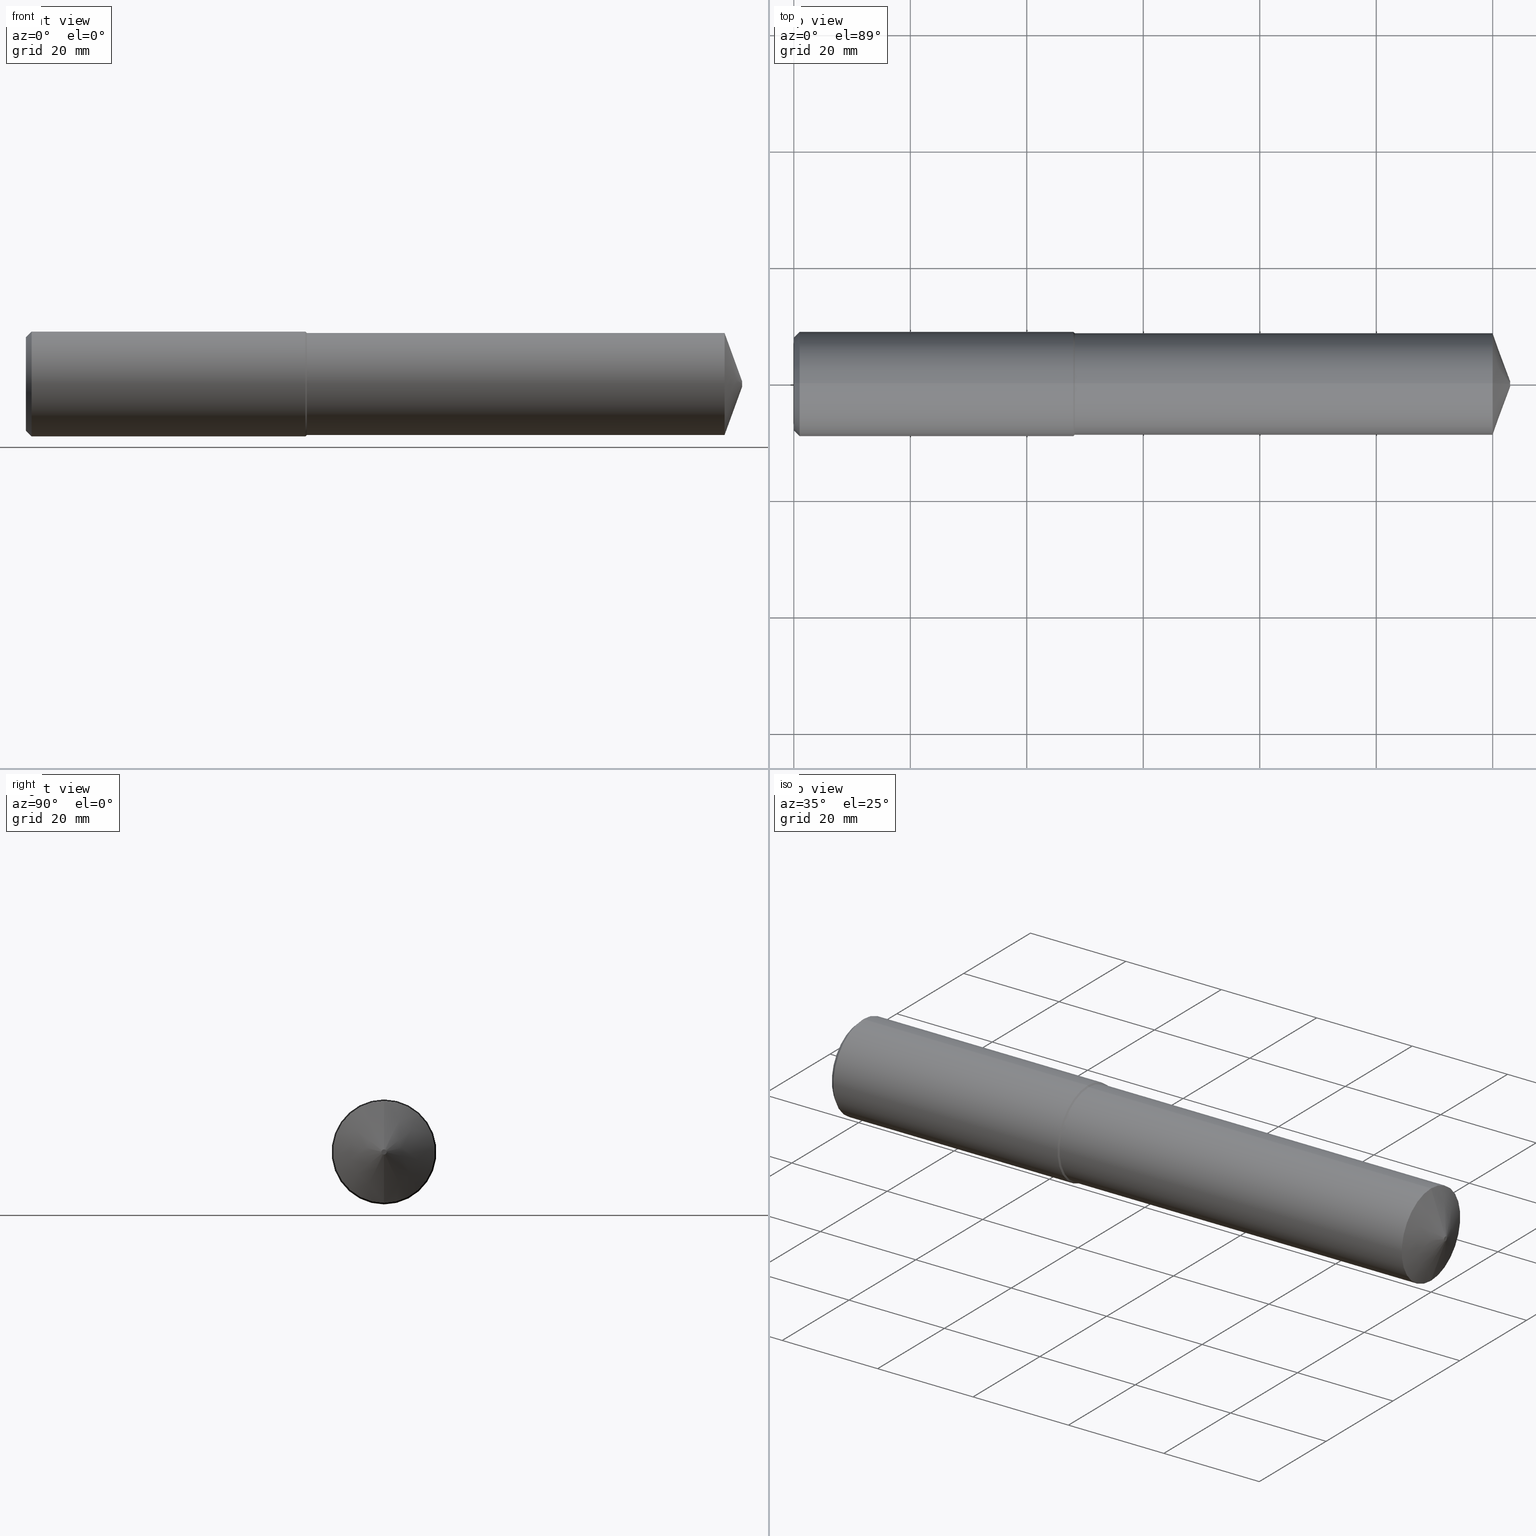
[diagram: canonical four-view strip — front | top / right | iso, engineering-drawing reading convention]
A machine part, canonical four-view strip (front | top / right | iso — engineering-drawing reading convention). The complete STEP part file that produces these views, byte-faithful:
ISO-10303-21;
HEADER;
FILE_DESCRIPTION (( 'STEP AP203' ),
    '1' );
FILE_NAME ('407010-DFX3-689A.STEP',
    '2024-10-02T21:55:35',
    ( '' ),
    ( '' ),
    'SwSTEP 2.0',
    'SolidWorks 2024',
    '' );
FILE_SCHEMA (( 'CONFIG_CONTROL_DESIGN' ));
ENDSEC;

DATA;
#1 = CARTESIAN_POINT ( 'NONE',  ( 1.889763779527559251, 0.000000000000000000, 0.000000000000000000 ) ) ;
#2 = CARTESIAN_POINT ( 'NONE',  ( 1.889763779527559251, 4.339299682018183145E-17, -0.3543307086614175261 ) ) ;
#3 =( CONVERSION_BASED_UNIT ( 'INCH', #351 ) LENGTH_UNIT ( ) NAMED_UNIT ( #136 ) );
#4 = LOCAL_TIME ( 14, 55, 35.00000000000000000, #181 ) ;
#5 = DIRECTION ( 'NONE',  ( 0.000000000000000000, 0.000000000000000000, -1.000000000000000000 ) ) ;
#6 = EDGE_CURVE ( 'NONE', #296, #210, #217, .T. ) ;
#7 = LINE ( 'NONE', #294, #328 ) ;
#8 = ORIENTED_EDGE ( 'NONE', *, *, #173, .T. ) ;
#9 =( LENGTH_UNIT ( ) NAMED_UNIT ( * ) SI_UNIT ( $, .METRE. ) );
#10 = CC_DESIGN_PERSON_AND_ORGANIZATION_ASSIGNMENT ( #149, #365, ( #187 ) ) ;
#11 = CALENDAR_DATE ( 2024, 2, 10 ) ;
#12 = LINE ( 'NONE', #121, #78 ) ;
#13 = AXIS2_PLACEMENT_3D ( 'NONE', #28, #176, #197 ) ;
#14 = DIRECTION ( 'NONE',  ( 1.000000000000000000, -0.000000000000000000, -0.000000000000000000 ) ) ;
#15 = APPROVAL_DATE_TIME ( #308, #199 ) ;
#16 = ADVANCED_FACE ( 'NONE', ( #180 ), #147, .T. ) ;
#17 = EDGE_LOOP ( 'NONE', ( #248, #75, #277, #185 ) ) ;
#18 = PERSON_AND_ORGANIZATION ( #194, #160 ) ;
#19 = FACE_OUTER_BOUND ( 'NONE', #327, .T. ) ;
#20 =( GEOMETRIC_REPRESENTATION_CONTEXT ( 3 ) GLOBAL_UNCERTAINTY_ASSIGNED_CONTEXT ( ( #331 ) ) GLOBAL_UNIT_ASSIGNED_CONTEXT ( ( #3, #86, #142 ) ) REPRESENTATION_CONTEXT ( 'NONE', 'WORKASPACE' ) );
#21 = DIRECTION ( 'NONE',  ( 0.7071067811865473507, 8.659560562354935323E-17, 0.7071067811865476838 ) ) ;
#22 = ADVANCED_FACE ( 'NONE', ( #182 ), #359, .T. ) ;
#23 = FACE_OUTER_BOUND ( 'NONE', #245, .T. ) ;
#24 = DIRECTION ( 'NONE',  ( -0.7071067811865549002, 0.000000000000000000, 0.7071067811865401342 ) ) ;
#25 = CARTESIAN_POINT ( 'NONE',  ( -0.03808593750000075634, 4.218908223062636632E-17, 0.3445000000000003615 ) ) ;
#26 = CC_DESIGN_APPROVAL ( #80, ( #233 ) ) ;
#27 = CARTESIAN_POINT ( 'NONE',  ( 4.723501418434322474, 4.218908223062640330E-17, -0.3445000000000006390 ) ) ;
#28 = CARTESIAN_POINT ( 'NONE',  ( -0.03808593750000075634, 0.000000000000000000, 0.000000000000000000 ) ) ;
#29 = DIRECTION ( 'NONE',  ( 0.7071067811865473507, 0.000000000000000000, -0.7071067811865476838 ) ) ;
#30 = CONICAL_SURFACE ( 'NONE', #260, 0.01750000000000059841, 1.221730476396031717 ) ;
#31 = ORIENTED_EDGE ( 'NONE', *, *, #6, .F. ) ;
#32 = CC_DESIGN_APPROVAL ( #259, ( #292 ) ) ;
#33 = DIRECTION ( 'NONE',  ( 1.000000000000000000, -0.000000000000000000, -0.000000000000000000 ) ) ;
#34 = CARTESIAN_POINT ( 'NONE',  ( 4.842519685039370358, 0.000000000000000000, 0.000000000000000000 ) ) ;
#35 = LINE ( 'NONE', #205, #107 ) ;
#36 = AXIS2_PLACEMENT_3D ( 'NONE', #190, #51, #192 ) ;
#37 = AXIS2_PLACEMENT_3D ( 'NONE', #1, #135, #111 ) ;
#38 = PLANE ( 'NONE',  #209 ) ;
#39 = SECURITY_CLASSIFICATION_LEVEL ( 'unclassified' ) ;
#40 = APPLICATION_CONTEXT ( 'configuration controlled 3d designs of mechanical parts and assemblies' ) ;
#41 = ORIENTED_EDGE ( 'NONE', *, *, #283, .F. ) ;
#42 = AXIS2_PLACEMENT_3D ( 'NONE', #250, #84, #161 ) ;
#43 = ADVANCED_FACE ( 'NONE', ( #19 ), #279, .T. ) ;
#44 = PERSON_AND_ORGANIZATION ( #194, #160 ) ;
#45 = ORIENTED_EDGE ( 'NONE', *, *, #87, .F. ) ;
#46 = APPROVAL_STATUS ( 'not_yet_approved' ) ;
#47 = DIRECTION ( 'NONE',  ( 0.000000000000000000, 0.000000000000000000, -1.000000000000000000 ) ) ;
#48 = DIRECTION ( 'NONE',  ( 1.000000000000000000, 0.000000000000000000, -0.000000000000000000 ) ) ;
#49 = CONICAL_SURFACE ( 'NONE', #254, 0.3543307086614172485, 0.7853981633974485010 ) ;
#50 = CARTESIAN_POINT ( 'NONE',  ( 4.842519685039370358, 0.000000000000000000, 0.000000000000000000 ) ) ;
#51 = DIRECTION ( 'NONE',  ( 1.000000000000000000, -0.000000000000000000, -0.000000000000000000 ) ) ;
#52 = CARTESIAN_POINT ( 'NONE',  ( -0.03808593750000075634, 0.000000000000000000, 0.000000000000000000 ) ) ;
#53 = AXIS2_PLACEMENT_3D ( 'NONE', #52, #220, #77 ) ;
#54 = PLANE ( 'NONE',  #159 ) ;
#55 = AXIS2_PLACEMENT_3D ( 'NONE', #338, #278, #157 ) ;
#56 = DIRECTION ( 'NONE',  ( 0.000000000000000000, 0.000000000000000000, -1.000000000000000000 ) ) ;
#57 = PRODUCT_RELATED_PRODUCT_CATEGORY ( 'detail', '', ( #187 ) ) ;
#58 = DIRECTION ( 'NONE',  ( 0.000000000000000000, 0.000000000000000000, -1.000000000000000000 ) ) ;
#59 = ADVANCED_FACE ( 'NONE', ( #304 ), #38, .T. ) ;
#60 = VECTOR ( 'NONE', #222, 39.37007874015748143 ) ;
#61 = LINE ( 'NONE', #146, #318 ) ;
#62 = ORIENTED_EDGE ( 'NONE', *, *, #256, .F. ) ;
#63 = DIRECTION ( 'NONE',  ( -0.3420201433256677692, 0.000000000000000000, 0.9396926207859086499 ) ) ;
#64 = ORIENTED_EDGE ( 'NONE', *, *, #325, .T. ) ;
#65 = CC_DESIGN_APPROVAL ( #199, ( #249 ) ) ;
#66 = DIRECTION ( 'NONE',  ( 0.000000000000000000, 0.000000000000000000, -1.000000000000000000 ) ) ;
#67 = PERSON_AND_ORGANIZATION_ROLE ( 'classification_officer' ) ;
#68 = ORIENTED_EDGE ( 'NONE', *, *, #133, .T. ) ;
#69 = EDGE_CURVE ( 'NONE', #116, #266, #191, .T. ) ;
#70 = DATE_AND_TIME ( #11, #4 ) ;
#71 = VERTEX_POINT ( 'NONE', #273 ) ;
#72 = SHAPE_DEFINITION_REPRESENTATION ( #130, #97 ) ;
#73 = EDGE_LOOP ( 'NONE', ( #8, #311, #369, #198 ) ) ;
#74 = EDGE_CURVE ( 'NONE', #367, #116, #12, .T. ) ;
#75 = ORIENTED_EDGE ( 'NONE', *, *, #289, .T. ) ;
#76 = CYLINDRICAL_SURFACE ( 'NONE', #105, 0.3543307086614173596 ) ;
#77 = DIRECTION ( 'NONE',  ( 0.000000000000000000, 0.000000000000000000, -1.000000000000000000 ) ) ;
#78 = VECTOR ( 'NONE', #14, 39.37007874015748143 ) ;
#79 = DIRECTION ( 'NONE',  ( 1.000000000000000000, -0.000000000000000000, -0.000000000000000000 ) ) ;
#80 = APPROVAL ( #46, 'UNSPECIFIED' ) ;
#81 = EDGE_CURVE ( 'NONE', #218, #266, #124, .T. ) ;
#82 = CARTESIAN_POINT ( 'NONE',  ( -0.03808593750000075634, 0.000000000000000000, 0.000000000000000000 ) ) ;
#83 = CIRCLE ( 'NONE', #298, 0.3149606299212597271 ) ;
#84 = DIRECTION ( 'NONE',  ( 1.000000000000000000, -0.000000000000000000, -0.000000000000000000 ) ) ;
#85 = VECTOR ( 'NONE', #24, 39.37007874015748143 ) ;
#86 =( NAMED_UNIT ( * ) PLANE_ANGLE_UNIT ( ) SI_UNIT ( $, .RADIAN. ) );
#87 = EDGE_CURVE ( 'NONE', #352, #362, #285, .T. ) ;
#88 = DIRECTION ( 'NONE',  ( -0.7071067811865549002, 8.659560562354842879E-17, -0.7071067811865401342 ) ) ;
#89 = ORIENTED_EDGE ( 'NONE', *, *, #358, .T. ) ;
#90 = DIRECTION ( 'NONE',  ( 1.000000000000000000, -0.000000000000000000, -0.000000000000000000 ) ) ;
#91 = ORIENTED_EDGE ( 'NONE', *, *, #242, .F. ) ;
#92 = DATE_AND_TIME ( #127, #113 ) ;
#93 = EDGE_CURVE ( 'NONE', #218, #126, #109, .T. ) ;
#94 = VERTEX_POINT ( 'NONE', #2 ) ;
#95 = APPLICATION_PROTOCOL_DEFINITION ( 'international standard', 'config_control_design', 1994, #40 ) ;
#96 = DIRECTION ( 'NONE',  ( -1.000000000000000000, 0.000000000000000000, 0.000000000000000000 ) ) ;
#97 = ADVANCED_BREP_SHAPE_REPRESENTATION ( '407010-DFX3-689A', ( #265, #106 ), #20 ) ;
#98 = ORIENTED_EDGE ( 'NONE', *, *, #110, .F. ) ;
#99 = CIRCLE ( 'NONE', #370, 0.3149606299212597271 ) ;
#100 = APPROVAL_STATUS ( 'not_yet_approved' ) ;
#101 = ORIENTED_EDGE ( 'NONE', *, *, #207, .F. ) ;
#102 = AXIS2_PLACEMENT_3D ( 'NONE', #309, #96, #158 ) ;
#103 = DIRECTION ( 'NONE',  ( 1.000000000000000000, -0.000000000000000000, -0.000000000000000000 ) ) ;
#104 = FACE_OUTER_BOUND ( 'NONE', #73, .T. ) ;
#105 = AXIS2_PLACEMENT_3D ( 'NONE', #82, #347, #257 ) ;
#106 = AXIS2_PLACEMENT_3D ( 'NONE', #227, #353, #264 ) ;
#107 = VECTOR ( 'NONE', #63, 39.37007874015748143 ) ;
#108 = APPROVAL_PERSON_ORGANIZATION ( #368, #80, #246 ) ;
#109 = LINE ( 'NONE', #313, #85 ) ;
#110 = EDGE_CURVE ( 'NONE', #94, #126, #196, .T. ) ;
#111 = DIRECTION ( 'NONE',  ( 0.000000000000000000, 0.000000000000000000, -1.000000000000000000 ) ) ;
#112 = FACE_OUTER_BOUND ( 'NONE', #17, .T. ) ;
#113 = LOCAL_TIME ( 14, 55, 35.00000000000000000, #303 ) ;
#114 = EDGE_LOOP ( 'NONE', ( #213, #243, #336, #322 ) ) ;
#115 = LINE ( 'NONE', #323, #202 ) ;
#116 = VERTEX_POINT ( 'NONE', #27 ) ;
#117 = CARTESIAN_POINT ( 'NONE',  ( 4.723501418434322474, 0.000000000000000000, 0.3445000000000006390 ) ) ;
#118 = ORIENTED_EDGE ( 'NONE', *, *, #363, .F. ) ;
#119 = ADVANCED_FACE ( 'NONE', ( #348 ), #30, .T. ) ;
#120 = CALENDAR_DATE ( 2024, 2, 10 ) ;
#121 = CARTESIAN_POINT ( 'NONE',  ( -0.03808593750000075634, 0.000000000000000000, -0.3445000000000003615 ) ) ;
#122 = LOCAL_TIME ( 14, 55, 35.00000000000000000, #241 ) ;
#123 = PERSON_AND_ORGANIZATION ( #194, #160 ) ;
#124 = LINE ( 'NONE', #25, #345 ) ;
#125 = DATE_TIME_ROLE ( 'classification_date' ) ;
#126 = VERTEX_POINT ( 'NONE', #319 ) ;
#127 = CALENDAR_DATE ( 2024, 2, 10 ) ;
#128 = ORIENTED_EDGE ( 'NONE', *, *, #189, .F. ) ;
#129 = CYLINDRICAL_SURFACE ( 'NONE', #177, 0.3445000000000003615 ) ;
#130 = PRODUCT_DEFINITION_SHAPE ( 'NONE', 'NONE',  #249 ) ;
#131 = DIRECTION ( 'NONE',  ( 0.000000000000000000, 0.000000000000000000, 1.000000000000000000 ) ) ;
#132 = CC_DESIGN_PERSON_AND_ORGANIZATION_ASSIGNMENT ( #18, #154, ( #292 ) ) ;
#133 = EDGE_CURVE ( 'NONE', #210, #94, #317, .T. ) ;
#134 = DIRECTION ( 'NONE',  ( -1.000000000000000000, 0.000000000000000000, 0.000000000000000000 ) ) ;
#135 = DIRECTION ( 'NONE',  ( 1.000000000000000000, -0.000000000000000000, -0.000000000000000000 ) ) ;
#136 = DIMENSIONAL_EXPONENTS ( 1.000000000000000000, 0.000000000000000000, 0.000000000000000000, 0.000000000000000000, 0.000000000000000000, 0.000000000000000000, 0.000000000000000000 ) ;
#137 = CARTESIAN_POINT ( 'NONE',  ( -0.03808593750000075634, 0.000000000000000000, 0.000000000000000000 ) ) ;
#138 = CYLINDRICAL_SURFACE ( 'NONE', #13, 0.3543307086614173596 ) ;
#139 = AXIS2_PLACEMENT_3D ( 'NONE', #34, #355, #324 ) ;
#140 = ORIENTED_EDGE ( 'NONE', *, *, #332, .T. ) ;
#141 = AXIS2_PLACEMENT_3D ( 'NONE', #340, #184, #47 ) ;
#142 =( NAMED_UNIT ( * ) SI_UNIT ( $, .STERADIAN. ) SOLID_ANGLE_UNIT ( ) );
#143 = DIRECTION ( 'NONE',  ( 0.000000000000000000, 0.000000000000000000, -1.000000000000000000 ) ) ;
#144 = ADVANCED_FACE ( 'NONE', ( #112 ), #129, .T. ) ;
#145 = ORIENTED_EDGE ( 'NONE', *, *, #283, .T. ) ;
#146 = CARTESIAN_POINT ( 'NONE',  ( 4.842519685039370358, 2.143131898507941560E-18, -0.01750000000000059841 ) ) ;
#147 = CONICAL_SURFACE ( 'NONE', #141, 0.3543307086614172485, 0.7853981633974485010 ) ;
#148 = ADVANCED_FACE ( 'NONE', ( #255 ), #76, .T. ) ;
#149 = PERSON_AND_ORGANIZATION ( #194, #160 ) ;
#150 = CARTESIAN_POINT ( 'NONE',  ( 4.723501418434322474, 0.000000000000000000, 0.000000000000000000 ) ) ;
#151 = PERSON_AND_ORGANIZATION ( #194, #160 ) ;
#152 = CIRCLE ( 'NONE', #42, 0.3445000000000001950 ) ;
#153 = DIRECTION ( 'NONE',  ( 0.000000000000000000, 0.000000000000000000, -1.000000000000000000 ) ) ;
#154 = PERSON_AND_ORGANIZATION_ROLE ( 'design_supplier' ) ;
#155 = VERTEX_POINT ( 'NONE', #168 ) ;
#156 = MECHANICAL_CONTEXT ( 'NONE', #212, 'mechanical' ) ;
#157 = DIRECTION ( 'NONE',  ( 0.000000000000000000, 0.000000000000000000, 1.000000000000000000 ) ) ;
#158 = DIRECTION ( 'NONE',  ( 0.000000000000000000, 0.000000000000000000, 1.000000000000000000 ) ) ;
#159 = AXIS2_PLACEMENT_3D ( 'NONE', #343, #188, #131 ) ;
#160 = ORGANIZATION ( 'UNSPECIFIED', 'UNSPECIFIED', '' ) ;
#161 = DIRECTION ( 'NONE',  ( 0.000000000000000000, 0.000000000000000000, -1.000000000000000000 ) ) ;
#162 = CC_DESIGN_PERSON_AND_ORGANIZATION_ASSIGNMENT ( #44, #300, ( #292 ) ) ;
#163 = DIRECTION ( 'NONE',  ( 0.000000000000000000, 0.000000000000000000, -1.000000000000000000 ) ) ;
#164 = DIRECTION ( 'NONE',  ( 0.000000000000000000, 0.000000000000000000, -1.000000000000000000 ) ) ;
#165 = CONICAL_SURFACE ( 'NONE', #253, 0.3445000000000001950, 0.7853981633974378429 ) ;
#166 = CIRCLE ( 'NONE', #139, 0.01750000000000059841 ) ;
#167 = CARTESIAN_POINT ( 'NONE',  ( 1.889763779527559251, 0.000000000000000000, 0.000000000000000000 ) ) ;
#168 = CARTESIAN_POINT ( 'NONE',  ( -8.537024980200822558E-18, 4.098227477461613409E-17, 0.3149606299212597271 ) ) ;
#169 = APPLICATION_PROTOCOL_DEFINITION ( 'international standard', 'config_control_design', 1994, #212 ) ;
#170 = EDGE_LOOP ( 'NONE', ( #275, #291, #91, #360 ) ) ;
#171 = CARTESIAN_POINT ( 'NONE',  ( 4.842519685039370358, 2.216610706456716106E-17, -0.01750000000000059841 ) ) ;
#172 = CC_DESIGN_PERSON_AND_ORGANIZATION_ASSIGNMENT ( #151, #67, ( #233 ) ) ;
#173 = EDGE_CURVE ( 'NONE', #367, #218, #152, .T. ) ;
#174 = CARTESIAN_POINT ( 'NONE',  ( 1.899594488188976582, 0.000000000000000000, 0.000000000000000000 ) ) ;
#175 = ORIENTED_EDGE ( 'NONE', *, *, #69, .T. ) ;
#176 = DIRECTION ( 'NONE',  ( 1.000000000000000000, -0.000000000000000000, -0.000000000000000000 ) ) ;
#177 = AXIS2_PLACEMENT_3D ( 'NONE', #137, #312, #56 ) ;
#178 = CALENDAR_DATE ( 2024, 2, 10 ) ;
#179 = EDGE_LOOP ( 'NONE', ( #128, #145, #239, #31 ) ) ;
#180 = FACE_OUTER_BOUND ( 'NONE', #179, .T. ) ;
#181 = COORDINATED_UNIVERSAL_TIME_OFFSET ( 8, 0, .BEHIND. ) ;
#182 = FACE_OUTER_BOUND ( 'NONE', #310, .T. ) ;
#183 = PERSON_AND_ORGANIZATION ( #194, #160 ) ;
#184 = DIRECTION ( 'NONE',  ( 1.000000000000000000, -0.000000000000000000, -0.000000000000000000 ) ) ;
#185 = ORIENTED_EDGE ( 'NONE', *, *, #376, .F. ) ;
#186 = ORIENTED_EDGE ( 'NONE', *, *, #261, .T. ) ;
#187 = PRODUCT ( '407010-DFX3-689A', '407010-DFX3-689A', '', ( #156 ) ) ;
#188 = DIRECTION ( 'NONE',  ( -1.000000000000000000, 0.000000000000000000, 0.000000000000000000 ) ) ;
#189 = EDGE_CURVE ( 'NONE', #155, #296, #193, .T. ) ;
#190 = CARTESIAN_POINT ( 'NONE',  ( 0.03937007874015747977, 0.000000000000000000, 0.000000000000000000 ) ) ;
#191 = CIRCLE ( 'NONE', #240, 0.3445000000000005835 ) ;
#192 = DIRECTION ( 'NONE',  ( 0.000000000000000000, 0.000000000000000000, -1.000000000000000000 ) ) ;
#193 = LINE ( 'NONE', #195, #232 ) ;
#194 = PERSON ( 'UNSPECIFIED', 'UNSPECIFIED', 'UNSPECIFIED', ('UNSPECIFIED'), ('UNSPECIFIED'), ('UNSPECIFIED') ) ;
#195 = CARTESIAN_POINT ( 'NONE',  ( 0.03937007874015747977, 4.339299682018179447E-17, 0.3543307086614172485 ) ) ;
#196 = CIRCLE ( 'NONE', #37, 0.3543307086614175261 ) ;
#197 = DIRECTION ( 'NONE',  ( 0.000000000000000000, 0.000000000000000000, -1.000000000000000000 ) ) ;
#198 = ORIENTED_EDGE ( 'NONE', *, *, #74, .F. ) ;
#199 = APPROVAL ( #330, 'UNSPECIFIED' ) ;
#200 = DIRECTION ( 'NONE',  ( 1.000000000000000000, -0.000000000000000000, -0.000000000000000000 ) ) ;
#201 = ADVANCED_FACE ( 'NONE', ( #284 ), #165, .T. ) ;
#202 = VECTOR ( 'NONE', #293, 39.37007874015748143 ) ;
#203 = FACE_OUTER_BOUND ( 'NONE', #236, .T. ) ;
#204 = ORIENTED_EDGE ( 'NONE', *, *, #110, .T. ) ;
#205 = CARTESIAN_POINT ( 'NONE',  ( 4.842519685039370358, 0.000000000000000000, 0.01750000000000059841 ) ) ;
#206 = ORIENTED_EDGE ( 'NONE', *, *, #332, .F. ) ;
#207 = EDGE_CURVE ( 'NONE', #126, #94, #238, .T. ) ;
#208 = ORIENTED_EDGE ( 'NONE', *, *, #363, .T. ) ;
#209 = AXIS2_PLACEMENT_3D ( 'NONE', #237, #48, #364 ) ;
#210 = VERTEX_POINT ( 'NONE', #219 ) ;
#211 = DATE_TIME_ROLE ( 'creation_date' ) ;
#212 = APPLICATION_CONTEXT ( 'configuration controlled 3d designs of mechanical parts and assemblies' ) ;
#213 = ORIENTED_EDGE ( 'NONE', *, *, #261, .F. ) ;
#214 = ADVANCED_FACE ( 'NONE', ( #23 ), #54, .T. ) ;
#215 = APPROVAL_DATE_TIME ( #276, #259 ) ;
#216 = CARTESIAN_POINT ( 'NONE',  ( 0.03937007874015747977, 0.000000000000000000, 0.000000000000000000 ) ) ;
#217 = CIRCLE ( 'NONE', #334, 0.3543307086614172485 ) ;
#218 = VERTEX_POINT ( 'NONE', #377 ) ;
#219 = CARTESIAN_POINT ( 'NONE',  ( 0.03937007874015747977, 0.000000000000000000, -0.3543307086614172485 ) ) ;
#220 = DIRECTION ( 'NONE',  ( 1.000000000000000000, -0.000000000000000000, -0.000000000000000000 ) ) ;
#221 = DIRECTION ( 'NONE',  ( 0.000000000000000000, 0.000000000000000000, 1.000000000000000000 ) ) ;
#222 = DIRECTION ( 'NONE',  ( 1.000000000000000000, -0.000000000000000000, -0.000000000000000000 ) ) ;
#223 = CARTESIAN_POINT ( 'NONE',  ( 4.842519685039370358, 0.000000000000000000, 0.000000000000000000 ) ) ;
#224 = AXIS2_PLACEMENT_3D ( 'NONE', #174, #200, #58 ) ;
#225 = LOCAL_TIME ( 14, 55, 35.00000000000000000, #271 ) ;
#226 = ORIENTED_EDGE ( 'NONE', *, *, #6, .T. ) ;
#227 = CARTESIAN_POINT ( 'NONE',  ( 0.000000000000000000, 0.000000000000000000, 0.000000000000000000 ) ) ;
#228 = ADVANCED_FACE ( 'NONE', ( #104 ), #344, .T. ) ;
#229 = ORIENTED_EDGE ( 'NONE', *, *, #242, .T. ) ;
#230 = FACE_OUTER_BOUND ( 'NONE', #170, .T. ) ;
#231 = ORIENTED_EDGE ( 'NONE', *, *, #325, .F. ) ;
#232 = VECTOR ( 'NONE', #21, 39.37007874015748143 ) ;
#233 = SECURITY_CLASSIFICATION ( '', '', #39 ) ;
#234 = CARTESIAN_POINT ( 'NONE',  ( 0.03937007874015747977, 0.000000000000000000, 0.000000000000000000 ) ) ;
#235 = DIRECTION ( 'NONE',  ( 0.000000000000000000, 0.000000000000000000, -1.000000000000000000 ) ) ;
#236 = EDGE_LOOP ( 'NONE', ( #229, #208, #98, #373 ) ) ;
#237 = CARTESIAN_POINT ( 'NONE',  ( 4.842519685039370358, 0.000000000000000000, 0.000000000000000000 ) ) ;
#238 = CIRCLE ( 'NONE', #357, 0.3543307086614175261 ) ;
#239 = ORIENTED_EDGE ( 'NONE', *, *, #315, .T. ) ;
#240 = AXIS2_PLACEMENT_3D ( 'NONE', #150, #272, #153 ) ;
#241 = COORDINATED_UNIVERSAL_TIME_OFFSET ( 8, 0, .BEHIND. ) ;
#242 = EDGE_CURVE ( 'NONE', #210, #296, #267, .T. ) ;
#243 = ORIENTED_EDGE ( 'NONE', *, *, #289, .F. ) ;
#244 = DATE_AND_TIME ( #120, #269 ) ;
#245 = EDGE_LOOP ( 'NONE', ( #62, #41 ) ) ;
#246 = APPROVAL_ROLE ( '' ) ;
#247 = VECTOR ( 'NONE', #88, 39.37007874015748143 ) ;
#248 = ORIENTED_EDGE ( 'NONE', *, *, #81, .F. ) ;
#249 = PRODUCT_DEFINITION ( 'UNKNOWN', '', #292, #295 ) ;
#250 = CARTESIAN_POINT ( 'NONE',  ( 1.899594488188976582, 0.000000000000000000, 0.000000000000000000 ) ) ;
#251 = DIRECTION ( 'NONE',  ( 1.000000000000000000, -0.000000000000000000, -0.000000000000000000 ) ) ;
#252 = DIRECTION ( 'NONE',  ( 1.000000000000000000, -0.000000000000000000, -0.000000000000000000 ) ) ;
#253 = AXIS2_PLACEMENT_3D ( 'NONE', #280, #375, #316 ) ;
#254 = AXIS2_PLACEMENT_3D ( 'NONE', #234, #297, #235 ) ;
#255 = FACE_OUTER_BOUND ( 'NONE', #342, .T. ) ;
#256 = EDGE_CURVE ( 'NONE', #71, #155, #99, .T. ) ;
#257 = DIRECTION ( 'NONE',  ( 0.000000000000000000, 0.000000000000000000, -1.000000000000000000 ) ) ;
#258 = CARTESIAN_POINT ( 'NONE',  ( 4.842519685039370358, 0.000000000000000000, 0.01750000000000059841 ) ) ;
#259 = APPROVAL ( #100, 'UNSPECIFIED' ) ;
#260 = AXIS2_PLACEMENT_3D ( 'NONE', #50, #134, #221 ) ;
#261 = EDGE_CURVE ( 'NONE', #367, #94, #346, .T. ) ;
#262 = DIRECTION ( 'NONE',  ( -0.3420201433256677692, 1.150791560227850763E-16, -0.9396926207859086499 ) ) ;
#263 = ORIENTED_EDGE ( 'NONE', *, *, #358, .F. ) ;
#264 = DIRECTION ( 'NONE',  ( 1.000000000000000000, 0.000000000000000000, 0.000000000000000000 ) ) ;
#265 = MANIFOLD_SOLID_BREP ( 'Body', #302 ) ;
#266 = VERTEX_POINT ( 'NONE', #117 ) ;
#267 = CIRCLE ( 'NONE', #36, 0.3543307086614172485 ) ;
#268 = APPROVAL_PERSON_ORGANIZATION ( #123, #199, #306 ) ;
#269 = LOCAL_TIME ( 14, 55, 35.00000000000000000, #274 ) ;
#270 = ORIENTED_EDGE ( 'NONE', *, *, #87, .T. ) ;
#271 = COORDINATED_UNIVERSAL_TIME_OFFSET ( 8, 0, .BEHIND. ) ;
#272 = DIRECTION ( 'NONE',  ( 1.000000000000000000, -0.000000000000000000, -0.000000000000000000 ) ) ;
#273 = CARTESIAN_POINT ( 'NONE',  ( -8.537024980200822558E-18, 0.000000000000000000, -0.3149606299212597271 ) ) ;
#274 = COORDINATED_UNIVERSAL_TIME_OFFSET ( 8, 0, .BEHIND. ) ;
#275 = ORIENTED_EDGE ( 'NONE', *, *, #256, .T. ) ;
#276 = DATE_AND_TIME ( #335, #122 ) ;
#277 = ORIENTED_EDGE ( 'NONE', *, *, #74, .T. ) ;
#278 = DIRECTION ( 'NONE',  ( -1.000000000000000000, 0.000000000000000000, 0.000000000000000000 ) ) ;
#279 = CONICAL_SURFACE ( 'NONE', #102, 0.3445000000000001950, 0.7853981633974378429 ) ;
#280 = CARTESIAN_POINT ( 'NONE',  ( 1.899594488188976582, 0.000000000000000000, 0.000000000000000000 ) ) ;
#281 = CARTESIAN_POINT ( 'NONE',  ( -8.537024980200822558E-18, 0.000000000000000000, 0.000000000000000000 ) ) ;
#282 = CC_DESIGN_PERSON_AND_ORGANIZATION_ASSIGNMENT ( #183, #341, ( #249 ) ) ;
#283 = EDGE_CURVE ( 'NONE', #155, #71, #83, .T. ) ;
#284 = FACE_OUTER_BOUND ( 'NONE', #114, .T. ) ;
#285 = CIRCLE ( 'NONE', #374, 0.01750000000000059841 ) ;
#286 = CARTESIAN_POINT ( 'NONE',  ( -0.03808593750000075634, 0.000000000000000000, -0.3543307086614173596 ) ) ;
#287 = CC_DESIGN_DATE_AND_TIME_ASSIGNMENT ( #244, #125, ( #233 ) ) ;
#288 = CARTESIAN_POINT ( 'NONE',  ( 1.899594488188976582, 0.000000000000000000, -0.3445000000000001950 ) ) ;
#289 = EDGE_CURVE ( 'NONE', #218, #367, #349, .T. ) ;
#290 = CARTESIAN_POINT ( 'NONE',  ( 1.899594488188976582, 4.218908223062634167E-17, -0.3445000000000001950 ) ) ;
#291 = ORIENTED_EDGE ( 'NONE', *, *, #189, .T. ) ;
#292 = PRODUCT_DEFINITION_FORMATION_WITH_SPECIFIED_SOURCE ( 'ANY', '', #187, .NOT_KNOWN. ) ;
#293 = DIRECTION ( 'NONE',  ( 1.000000000000000000, -0.000000000000000000, -0.000000000000000000 ) ) ;
#294 = CARTESIAN_POINT ( 'NONE',  ( 0.03937007874015747977, 0.000000000000000000, -0.3543307086614172485 ) ) ;
#295 = DESIGN_CONTEXT ( 'detailed design', #40, 'design' ) ;
#296 = VERTEX_POINT ( 'NONE', #361 ) ;
#297 = DIRECTION ( 'NONE',  ( 1.000000000000000000, -0.000000000000000000, -0.000000000000000000 ) ) ;
#298 = AXIS2_PLACEMENT_3D ( 'NONE', #321, #33, #5 ) ;
#299 = CIRCLE ( 'NONE', #371, 0.3445000000000005835 ) ;
#300 = PERSON_AND_ORGANIZATION_ROLE ( 'creator' ) ;
#301 = ORIENTED_EDGE ( 'NONE', *, *, #173, .F. ) ;
#302 = CLOSED_SHELL ( 'NONE', ( #305, #320, #43, #228, #119, #214, #59, #22, #144, #201, #148, #16 ) ) ;
#303 = COORDINATED_UNIVERSAL_TIME_OFFSET ( 8, 0, .BEHIND. ) ;
#304 = FACE_OUTER_BOUND ( 'NONE', #356, .T. ) ;
#305 = ADVANCED_FACE ( 'NONE', ( #230 ), #49, .T. ) ;
#306 = APPROVAL_ROLE ( '' ) ;
#307 = ORIENTED_EDGE ( 'NONE', *, *, #93, .F. ) ;
#308 = DATE_AND_TIME ( #178, #225 ) ;
#309 = CARTESIAN_POINT ( 'NONE',  ( 1.899594488188976582, 0.000000000000000000, 0.000000000000000000 ) ) ;
#310 = EDGE_LOOP ( 'NONE', ( #263, #45, #64, #354 ) ) ;
#311 = ORIENTED_EDGE ( 'NONE', *, *, #81, .T. ) ;
#312 = DIRECTION ( 'NONE',  ( 1.000000000000000000, -0.000000000000000000, -0.000000000000000000 ) ) ;
#313 = CARTESIAN_POINT ( 'NONE',  ( 1.899594488188976582, 0.000000000000000000, 0.3445000000000001950 ) ) ;
#314 = CC_DESIGN_DATE_AND_TIME_ASSIGNMENT ( #70, #211, ( #249 ) ) ;
#315 = EDGE_CURVE ( 'NONE', #71, #210, #7, .T. ) ;
#316 = DIRECTION ( 'NONE',  ( 0.000000000000000000, 0.000000000000000000, 1.000000000000000000 ) ) ;
#317 = LINE ( 'NONE', #286, #60 ) ;
#318 = VECTOR ( 'NONE', #262, 39.37007874015748143 ) ;
#319 = CARTESIAN_POINT ( 'NONE',  ( 1.889763779527559251, 0.000000000000000000, 0.3543307086614175261 ) ) ;
#320 = ADVANCED_FACE ( 'NONE', ( #203 ), #138, .T. ) ;
#321 = CARTESIAN_POINT ( 'NONE',  ( -8.537024980200822558E-18, 0.000000000000000000, 0.000000000000000000 ) ) ;
#322 = ORIENTED_EDGE ( 'NONE', *, *, #207, .T. ) ;
#323 = CARTESIAN_POINT ( 'NONE',  ( -0.03808593750000075634, 4.339299682018181296E-17, 0.3543307086614173596 ) ) ;
#324 = DIRECTION ( 'NONE',  ( 0.000000000000000000, 0.000000000000000000, -1.000000000000000000 ) ) ;
#325 = EDGE_CURVE ( 'NONE', #352, #266, #35, .T. ) ;
#326 = CARTESIAN_POINT ( 'NONE',  ( 4.723501418434322474, 0.000000000000000000, 0.000000000000000000 ) ) ;
#327 = EDGE_LOOP ( 'NONE', ( #301, #186, #204, #307 ) ) ;
#328 = VECTOR ( 'NONE', #29, 39.37007874015748143 ) ;
#329 = APPROVAL_PERSON_ORGANIZATION ( #337, #259, #339 ) ;
#330 = APPROVAL_STATUS ( 'not_yet_approved' ) ;
#331 = UNCERTAINTY_MEASURE_WITH_UNIT (LENGTH_MEASURE( 1.000000000000000082E-05 ), #3, 'distance_accuracy_value', 'NONE');
#332 = EDGE_CURVE ( 'NONE', #362, #352, #166, .T. ) ;
#333 = EDGE_LOOP ( 'NONE', ( #206, #89, #175, #231 ) ) ;
#334 = AXIS2_PLACEMENT_3D ( 'NONE', #216, #366, #66 ) ;
#335 = CALENDAR_DATE ( 2024, 2, 10 ) ;
#336 = ORIENTED_EDGE ( 'NONE', *, *, #93, .T. ) ;
#337 = PERSON_AND_ORGANIZATION ( #194, #160 ) ;
#338 = CARTESIAN_POINT ( 'NONE',  ( 4.842519685039370358, 0.000000000000000000, 0.000000000000000000 ) ) ;
#339 = APPROVAL_ROLE ( '' ) ;
#340 = CARTESIAN_POINT ( 'NONE',  ( 0.03937007874015747977, 0.000000000000000000, 0.000000000000000000 ) ) ;
#341 = PERSON_AND_ORGANIZATION_ROLE ( 'creator' ) ;
#342 = EDGE_LOOP ( 'NONE', ( #118, #226, #68, #101 ) ) ;
#343 = CARTESIAN_POINT ( 'NONE',  ( -4.821444091131301509E-18, 0.3149606299212597271, 0.000000000000000000 ) ) ;
#344 = CYLINDRICAL_SURFACE ( 'NONE', #53, 0.3445000000000003615 ) ;
#345 = VECTOR ( 'NONE', #251, 39.37007874015748143 ) ;
#346 = LINE ( 'NONE', #290, #247 ) ;
#347 = DIRECTION ( 'NONE',  ( 1.000000000000000000, -0.000000000000000000, -0.000000000000000000 ) ) ;
#348 = FACE_OUTER_BOUND ( 'NONE', #333, .T. ) ;
#349 = CIRCLE ( 'NONE', #224, 0.3445000000000001950 ) ;
#350 = CC_DESIGN_SECURITY_CLASSIFICATION ( #233, ( #292 ) ) ;
#351 = LENGTH_MEASURE_WITH_UNIT ( LENGTH_MEASURE( 0.02539999999999999897 ), #9 );
#352 = VERTEX_POINT ( 'NONE', #258 ) ;
#353 = DIRECTION ( 'NONE',  ( 0.000000000000000000, 0.000000000000000000, 1.000000000000000000 ) ) ;
#354 = ORIENTED_EDGE ( 'NONE', *, *, #376, .T. ) ;
#355 = DIRECTION ( 'NONE',  ( 1.000000000000000000, -0.000000000000000000, -0.000000000000000000 ) ) ;
#356 = EDGE_LOOP ( 'NONE', ( #270, #140 ) ) ;
#357 = AXIS2_PLACEMENT_3D ( 'NONE', #167, #103, #164 ) ;
#358 = EDGE_CURVE ( 'NONE', #362, #116, #61, .T. ) ;
#359 = CONICAL_SURFACE ( 'NONE', #55, 0.01750000000000059841, 1.221730476396031717 ) ;
#360 = ORIENTED_EDGE ( 'NONE', *, *, #315, .F. ) ;
#361 = CARTESIAN_POINT ( 'NONE',  ( 0.03937007874015747977, 4.339299682018180063E-17, 0.3543307086614172485 ) ) ;
#362 = VERTEX_POINT ( 'NONE', #171 ) ;
#363 = EDGE_CURVE ( 'NONE', #296, #126, #115, .T. ) ;
#364 = DIRECTION ( 'NONE',  ( -0.000000000000000000, 0.000000000000000000, -1.000000000000000000 ) ) ;
#365 = PERSON_AND_ORGANIZATION_ROLE ( 'design_owner' ) ;
#366 = DIRECTION ( 'NONE',  ( 1.000000000000000000, -0.000000000000000000, -0.000000000000000000 ) ) ;
#367 = VERTEX_POINT ( 'NONE', #288 ) ;
#368 = PERSON_AND_ORGANIZATION ( #194, #160 ) ;
#369 = ORIENTED_EDGE ( 'NONE', *, *, #69, .F. ) ;
#370 = AXIS2_PLACEMENT_3D ( 'NONE', #281, #252, #378 ) ;
#371 = AXIS2_PLACEMENT_3D ( 'NONE', #326, #90, #143 ) ;
#372 = APPROVAL_DATE_TIME ( #92, #80 ) ;
#373 = ORIENTED_EDGE ( 'NONE', *, *, #133, .F. ) ;
#374 = AXIS2_PLACEMENT_3D ( 'NONE', #223, #79, #163 ) ;
#375 = DIRECTION ( 'NONE',  ( -1.000000000000000000, 0.000000000000000000, 0.000000000000000000 ) ) ;
#376 = EDGE_CURVE ( 'NONE', #266, #116, #299, .T. ) ;
#377 = CARTESIAN_POINT ( 'NONE',  ( 1.899594488188976582, 4.218908223062635399E-17, 0.3445000000000001950 ) ) ;
#378 = DIRECTION ( 'NONE',  ( 0.000000000000000000, 0.000000000000000000, -1.000000000000000000 ) ) ;
ENDSEC;
END-ISO-10303-21;
